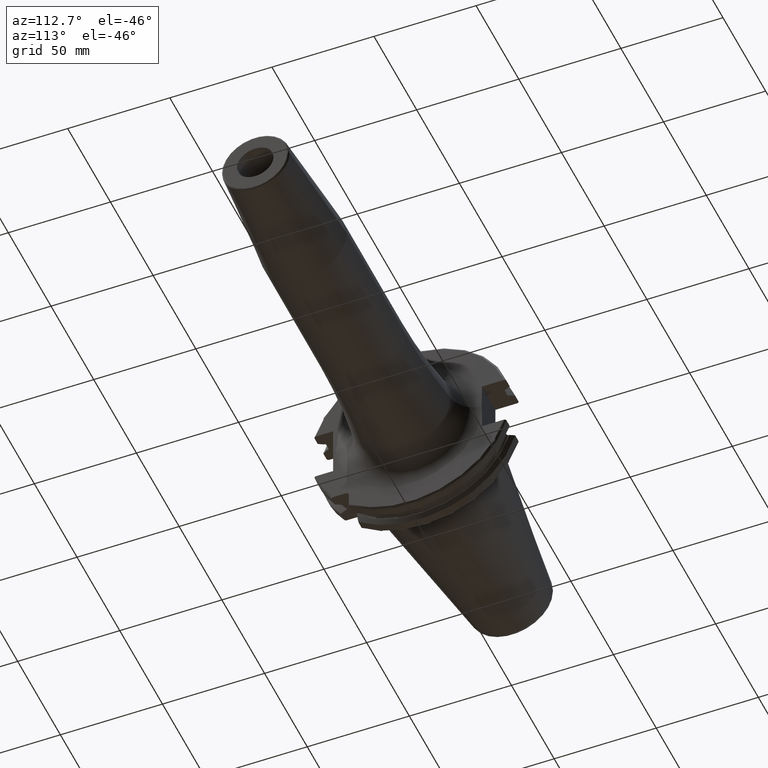
[diagram: clean part render]
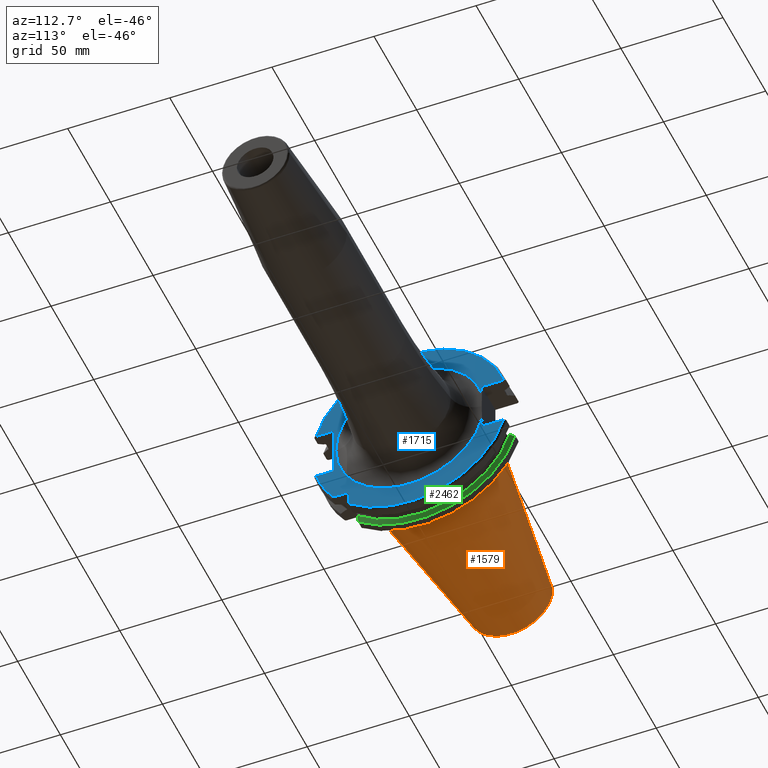
[diagram: same view with three faces highlighted in distinct colors, each labeled with its STEP entity id]
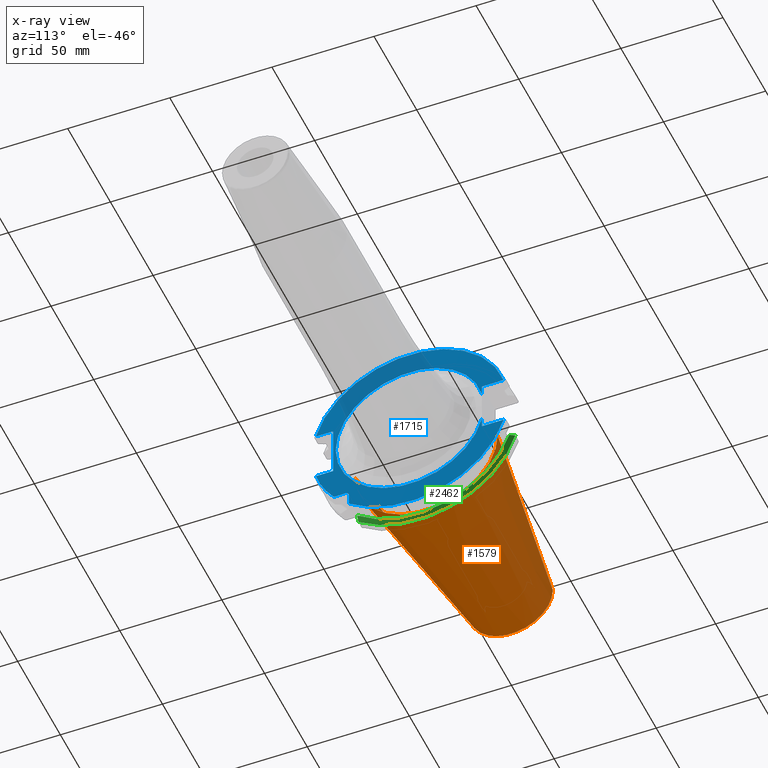
[diagram: x-ray of the same camera — body ghosted, the three highlighted faces saturated]
A machine part, auxiliary view with three faces highlighted in distinct colors.
The next image is the same camera in x-ray (body ghosted, the three faces saturated) — at least one of them is partly hidden behind the body in this view.
Their STEP definitions:

[orange] entity #1579 — the highlighted conical surface has half-angle 8.298 deg.
#32=CARTESIAN_POINT('',(-9.967471700563E1,0.E0,0.E0));
#33=DIRECTION('',(-1.E0,0.E0,0.E0));
#34=DIRECTION('',(0.E0,1.E0,0.E0));
#35=AXIS2_PLACEMENT_3D('',#32,#33,#34);
#47=DIRECTION('',(-9.895312636440E-1,-1.443186691705E-1,0.E0));
#48=VECTOR('',#47,1.002343617797E2);
#49=CARTESIAN_POINT('',(-4.896823332305E-1,3.485358204157E1,0.E0));
#50=LINE('',#49,#48);
#51=DIRECTION('',(-9.895312636440E-1,1.443186691705E-1,0.E0));
#52=VECTOR('',#51,1.002343617797E2);
#53=CARTESIAN_POINT('',(-4.896823332305E-1,-3.485358204157E1,0.E0));
#54=LINE('',#53,#52);
#55=CARTESIAN_POINT('',(-4.896823332305E-1,0.E0,0.E0));
#56=DIRECTION('',(-1.E0,0.E0,0.E0));
#57=DIRECTION('',(0.E0,1.E0,0.E0));
#58=AXIS2_PLACEMENT_3D('',#55,#56,#57);
#1244=CARTESIAN_POINT('',(-9.967471700563E1,2.038789234437E1,0.E0));
#1246=VERTEX_POINT('',#1244);
#1248=CARTESIAN_POINT('',(-9.967471700563E1,-2.038789234437E1,0.E0));
#1250=VERTEX_POINT('',#1248);
#1312=CARTESIAN_POINT('',(-4.896823332305E-1,3.485358204157E1,0.E0));
#1313=VERTEX_POINT('',#1312);
#1314=CARTESIAN_POINT('',(-4.896823332305E-1,-3.485358204157E1,0.E0));
#1315=VERTEX_POINT('',#1314);
#1567=CARTESIAN_POINT('',(-5.008219966943E1,0.E0,0.E0));
#1568=DIRECTION('',(1.E0,0.E0,0.E0));
#1569=DIRECTION('',(0.E0,-1.E0,0.E0));
#1570=AXIS2_PLACEMENT_3D('',#1567,#1568,#1569);
#1571=CONICAL_SURFACE('',#1570,2.762073719297E1,8.297826828206E0);
#1572=ORIENTED_EDGE('',*,*,#1557,.T.);
#1573=ORIENTED_EDGE('',*,*,#1534,.T.);
#1574=ORIENTED_EDGE('',*,*,#1561,.F.);
#1576=ORIENTED_EDGE('',*,*,#1575,.F.);
#1577=EDGE_LOOP('',(#1572,#1573,#1574,#1576));
#1578=FACE_OUTER_BOUND('',#1577,.F.);
#1579=ADVANCED_FACE('',(#1578),#1571,.T.);
#36=CIRCLE('',#35,2.038789234437E1);
#59=CIRCLE('',#58,3.485358204157E1);
#1534=EDGE_CURVE('',#1246,#1250,#36,.T.);
#1557=EDGE_CURVE('',#1313,#1246,#50,.T.);
#1561=EDGE_CURVE('',#1315,#1250,#54,.T.);
#1575=EDGE_CURVE('',#1313,#1315,#59,.T.);

[blue] entity #1715 — the highlighted planar face has unit normal (1, 0, 0).
#126=CARTESIAN_POINT('',(1.905E1,0.E0,0.E0));
#127=DIRECTION('',(1.E0,0.E0,0.E0));
#128=DIRECTION('',(0.E0,-1.E0,0.E0));
#129=AXIS2_PLACEMENT_3D('',#126,#127,#128);
#131=DIRECTION('',(0.E0,6.308424900016E-6,-9.999999999801E-1));
#132=VECTOR('',#131,4.752192405451E0);
#133=CARTESIAN_POINT('',(1.905E1,3.529997002115E1,-8.147807594644E0));
#134=LINE('',#133,#132);
#135=DIRECTION('',(0.E0,-1.E0,0.E0));
#136=VECTOR('',#135,1.066149373389E1);
#137=CARTESIAN_POINT('',(1.905E1,4.596149373389E1,-1.29E1));
#138=LINE('',#137,#136);
#139=DIRECTION('',(0.E0,0.E0,1.E0));
#140=VECTOR('',#139,5.653810627237E0);
#141=CARTESIAN_POINT('',(1.905E1,-2.985E1,-3.725381062724E1));
#142=LINE('',#141,#140);
#143=DIRECTION('',(0.E0,-1.E0,0.E0));
#144=VECTOR('',#143,5.653810627237E0);
#145=CARTESIAN_POINT('',(1.905E1,-3.16E1,-2.985E1));
#146=LINE('',#145,#144);
#147=DIRECTION('',(0.E0,1.E0,0.E0));
#148=VECTOR('',#147,8.461493733886E0);
#149=CARTESIAN_POINT('',(1.905E1,-4.596149373389E1,-1.29E1));
#150=LINE('',#149,#148);
#151=DIRECTION('',(0.E0,0.E0,1.E0));
#152=VECTOR('',#151,2.58E1);
#153=CARTESIAN_POINT('',(1.905E1,-3.75E1,-1.29E1));
#154=LINE('',#153,#152);
#155=DIRECTION('',(0.E0,1.E0,0.E0));
#156=VECTOR('',#155,8.461493733886E0);
#157=CARTESIAN_POINT('',(1.905E1,-4.596149373389E1,1.29E1));
#158=LINE('',#157,#156);
#159=DIRECTION('',(0.E0,-1.E0,0.E0));
#160=VECTOR('',#159,1.066149373389E1);
#161=CARTESIAN_POINT('',(1.905E1,4.596149373389E1,1.29E1));
#162=LINE('',#161,#160);
#163=DIRECTION('',(0.E0,-6.872405523502E-6,-9.999999999764E-1));
#164=VECTOR('',#163,4.752119844504E0);
#165=CARTESIAN_POINT('',(1.905E1,3.53E1,1.29E1));
#166=LINE('',#165,#164);
#167=CARTESIAN_POINT('',(1.905E1,0.E0,0.E0));
#168=DIRECTION('',(1.E0,0.E0,0.E0));
#169=DIRECTION('',(0.E0,9.743846096550E-1,2.248880442966E-1));
#170=AXIS2_PLACEMENT_3D('',#167,#168,#169);
#609=CARTESIAN_POINT('',(1.905E1,-3.16E1,-3.16E1));
#610=DIRECTION('',(-1.E0,0.E0,0.E0));
#611=DIRECTION('',(0.E0,0.E0,1.E0));
#612=AXIS2_PLACEMENT_3D('',#609,#610,#611);
#644=CARTESIAN_POINT('',(1.905E1,0.E0,0.E0));
#645=DIRECTION('',(-1.E0,0.E0,0.E0));
#646=DIRECTION('',(0.E0,9.627964123359E-1,-2.702278083268E-1));
#647=AXIS2_PLACEMENT_3D('',#644,#645,#646);
#660=CARTESIAN_POINT('',(1.905E1,0.E0,0.E0));
#661=DIRECTION('',(-1.E0,0.E0,0.E0));
#662=DIRECTION('',(0.E0,-7.803888060170E-1,-6.252945797329E-1));
#663=AXIS2_PLACEMENT_3D('',#660,#661,#662);
#674=CARTESIAN_POINT('',(1.905E1,-3.725381062724E1,-2.985E1));
#1022=CARTESIAN_POINT('',(1.905E1,0.E0,0.E0));
#1023=DIRECTION('',(1.E0,0.E0,0.E0));
#1024=DIRECTION('',(0.E0,9.627964123359E-1,2.702278083268E-1));
#1025=AXIS2_PLACEMENT_3D('',#1022,#1023,#1024);
#1366=CARTESIAN_POINT('',(1.905E1,4.596149373389E1,1.29E1));
#1367=CARTESIAN_POINT('',(1.905E1,3.53E1,1.29E1));
#1368=VERTEX_POINT('',#1366);
#1369=VERTEX_POINT('',#1367);
#1370=CARTESIAN_POINT('',(1.905E1,4.596149373389E1,-1.29E1));
#1371=CARTESIAN_POINT('',(1.905E1,3.53E1,-1.29E1));
#1372=VERTEX_POINT('',#1370);
#1373=VERTEX_POINT('',#1371);
#1374=CARTESIAN_POINT('',(1.905E1,-4.596149373389E1,-1.29E1));
#1375=CARTESIAN_POINT('',(1.905E1,-3.75E1,-1.29E1));
#1376=VERTEX_POINT('',#1374);
#1377=VERTEX_POINT('',#1375);
#1378=CARTESIAN_POINT('',(1.905E1,-3.75E1,1.29E1));
#1379=VERTEX_POINT('',#1378);
#1380=CARTESIAN_POINT('',(1.905E1,-4.596149373389E1,1.29E1));
#1381=VERTEX_POINT('',#1380);
#1435=CARTESIAN_POINT('',(1.905E1,-2.985E1,-3.725381062724E1));
#1436=VERTEX_POINT('',#1435);
#1443=CARTESIAN_POINT('',(1.905E1,-3.16E1,-2.985E1));
#1444=CARTESIAN_POINT('',(1.905E1,-2.985E1,-3.16E1));
#1445=VERTEX_POINT('',#1443);
#1446=VERTEX_POINT('',#1444);
#1468=VERTEX_POINT('',#674);
#1490=CARTESIAN_POINT('',(1.905E1,-3.622816150469E1,-2.247540968681E-13));
#1491=CARTESIAN_POINT('',(1.905E1,3.530020307509E1,-8.147106778921E0));
#1492=VERTEX_POINT('',#1490);
#1493=VERTEX_POINT('',#1491);
#1498=CARTESIAN_POINT('',(1.905E1,3.530016300626E1,8.147280389250E0));
#1499=VERTEX_POINT('',#1498);
#1680=CARTESIAN_POINT('',(1.905E1,0.E0,0.E0));
#1681=DIRECTION('',(1.E0,0.E0,0.E0));
#1682=DIRECTION('',(0.E0,-1.E0,0.E0));
#1683=AXIS2_PLACEMENT_3D('',#1680,#1681,#1682);
#1684=PLANE('',#1683);
#1686=ORIENTED_EDGE('',*,*,#1685,.T.);
#1687=ORIENTED_EDGE('',*,*,#1658,.T.);
#1689=ORIENTED_EDGE('',*,*,#1688,.F.);
#1691=ORIENTED_EDGE('',*,*,#1690,.T.);
#1693=ORIENTED_EDGE('',*,*,#1692,.T.);
#1695=ORIENTED_EDGE('',*,*,#1694,.F.);
#1697=ORIENTED_EDGE('',*,*,#1696,.T.);
#1699=ORIENTED_EDGE('',*,*,#1698,.T.);
#1701=ORIENTED_EDGE('',*,*,#1700,.T.);
#1703=ORIENTED_EDGE('',*,*,#1702,.T.);
#1705=ORIENTED_EDGE('',*,*,#1704,.F.);
#1707=ORIENTED_EDGE('',*,*,#1706,.F.);
#1709=ORIENTED_EDGE('',*,*,#1708,.T.);
#1710=ORIENTED_EDGE('',*,*,#1664,.T.);
#1712=ORIENTED_EDGE('',*,*,#1711,.T.);
#1713=EDGE_LOOP('',(#1686,#1687,#1689,#1691,#1693,#1695,#1697,#1699,#1701,#1703,
#1705,#1707,#1709,#1710,#1712));
#1714=FACE_OUTER_BOUND('',#1713,.F.);
#1715=ADVANCED_FACE('',(#1714),#1684,.T.);
#130=CIRCLE('',#129,3.622816150469E1);
#171=CIRCLE('',#170,3.622816150469E1);
#613=CIRCLE('',#612,1.75E0);
#648=CIRCLE('',#647,4.77375E1);
#664=CIRCLE('',#663,4.77375E1);
#1026=CIRCLE('',#1025,4.77375E1);
#1658=EDGE_CURVE('',#1493,#1373,#134,.T.);
#1664=EDGE_CURVE('',#1369,#1499,#166,.T.);
#1685=EDGE_CURVE('',#1492,#1493,#130,.T.);
#1688=EDGE_CURVE('',#1372,#1373,#138,.T.);
#1690=EDGE_CURVE('',#1372,#1436,#648,.T.);
#1692=EDGE_CURVE('',#1436,#1446,#142,.T.);
#1694=EDGE_CURVE('',#1445,#1446,#613,.T.);
#1696=EDGE_CURVE('',#1445,#1468,#146,.T.);
#1698=EDGE_CURVE('',#1468,#1376,#664,.T.);
#1700=EDGE_CURVE('',#1376,#1377,#150,.T.);
#1702=EDGE_CURVE('',#1377,#1379,#154,.T.);
#1704=EDGE_CURVE('',#1381,#1379,#158,.T.);
#1706=EDGE_CURVE('',#1368,#1381,#1026,.T.);
#1708=EDGE_CURVE('',#1368,#1369,#162,.T.);
#1711=EDGE_CURVE('',#1499,#1492,#171,.T.);

[green] entity #2462 — the highlighted conical surface has half-angle 60 deg.
#331=CARTESIAN_POINT('',(9.2625E0,0.E0,0.E0));
#332=DIRECTION('',(-1.E0,0.E0,0.E0));
#333=DIRECTION('',(0.E0,9.606411165078E-1,-2.777924499957E-1));
#334=AXIS2_PLACEMENT_3D('',#331,#332,#333);
#684=CARTESIAN_POINT('',(7.934621614173E0,0.E0,0.E0));
#685=DIRECTION('',(1.E0,0.E0,0.E0));
#686=DIRECTION('',(0.E0,-6.124647345473E-1,-7.904979120376E-1));
#687=AXIS2_PLACEMENT_3D('',#684,#685,#686);
#791=CARTESIAN_POINT('',(9.2625E0,4.460981716077E1,-1.29E1));
#792=CARTESIAN_POINT('',(9.118283773553E0,4.486984125009E1,-1.29E1));
#793=CARTESIAN_POINT('',(8.827633549554E0,4.539353719098E1,-1.29E1));
#794=CARTESIAN_POINT('',(8.385043355543E0,4.618996220278E1,-1.29E1));
#795=CARTESIAN_POINT('',(8.085504386120E0,4.672829507383E1,-1.29E1));
#796=CARTESIAN_POINT('',(7.934621614173E0,4.699929686974E1,-1.29E1));
#798=CARTESIAN_POINT('',(9.2625E0,-2.985E1,-3.557278857662E1));
#799=CARTESIAN_POINT('',(9.122796459387E0,-2.985E1,-3.588866659244E1));
#800=CARTESIAN_POINT('',(8.838204990616E0,-2.985E1,-3.652866450573E1));
#801=CARTESIAN_POINT('',(8.396067032347E0,-2.985E1,-3.751242476101E1));
#802=CARTESIAN_POINT('',(8.090246731407E0,-2.985E1,-3.818590359837E1));
#803=CARTESIAN_POINT('',(7.934621614173E0,-2.985E1,-3.852689198793E1));
#1320=CARTESIAN_POINT('',(9.2625E0,4.460981716077E1,-1.29E1));
#1322=VERTEX_POINT('',#1320);
#1364=VERTEX_POINT('',#796);
#1419=CARTESIAN_POINT('',(9.2625E0,-2.985E1,-3.557278857662E1));
#1420=VERTEX_POINT('',#1419);
#1463=VERTEX_POINT('',#803);
#2451=CARTESIAN_POINT('',(8.598560807087E0,0.E0,0.E0));
#2452=DIRECTION('',(-1.E0,0.E0,0.E0));
#2453=DIRECTION('',(0.E0,1.E0,0.E0));
#2454=AXIS2_PLACEMENT_3D('',#2451,#2452,#2453);
#2455=CONICAL_SURFACE('',#2454,4.758752358474E1,6.E1);
#2456=ORIENTED_EDGE('',*,*,#1941,.T.);
#2457=ORIENTED_EDGE('',*,*,#2351,.F.);
#2458=ORIENTED_EDGE('',*,*,#2305,.F.);
#2459=ORIENTED_EDGE('',*,*,#1968,.F.);
#2460=EDGE_LOOP('',(#2456,#2457,#2458,#2459));
#2461=FACE_OUTER_BOUND('',#2460,.F.);
#2462=ADVANCED_FACE('',(#2461),#2455,.T.);
#335=CIRCLE('',#334,4.643754716948E1);
#688=CIRCLE('',#687,4.87375E1);
#797=B_SPLINE_CURVE_WITH_KNOTS('',3,(#791,#792,#793,#794,#795,#796),
.UNSPECIFIED.,.F.,.F.,(4,1,1,4),(0.E0,3.333333333333E-1,6.666666666667E-1,1.E0),
.UNSPECIFIED.);
#804=B_SPLINE_CURVE_WITH_KNOTS('',3,(#798,#799,#800,#801,#802,#803),
.UNSPECIFIED.,.F.,.F.,(4,1,1,4),(0.E0,3.333333333333E-1,6.666666666667E-1,1.E0),
.UNSPECIFIED.);
#1941=EDGE_CURVE('',#1322,#1364,#797,.T.);
#1968=EDGE_CURVE('',#1322,#1420,#335,.T.);
#2305=EDGE_CURVE('',#1420,#1463,#804,.T.);
#2351=EDGE_CURVE('',#1463,#1364,#688,.T.);